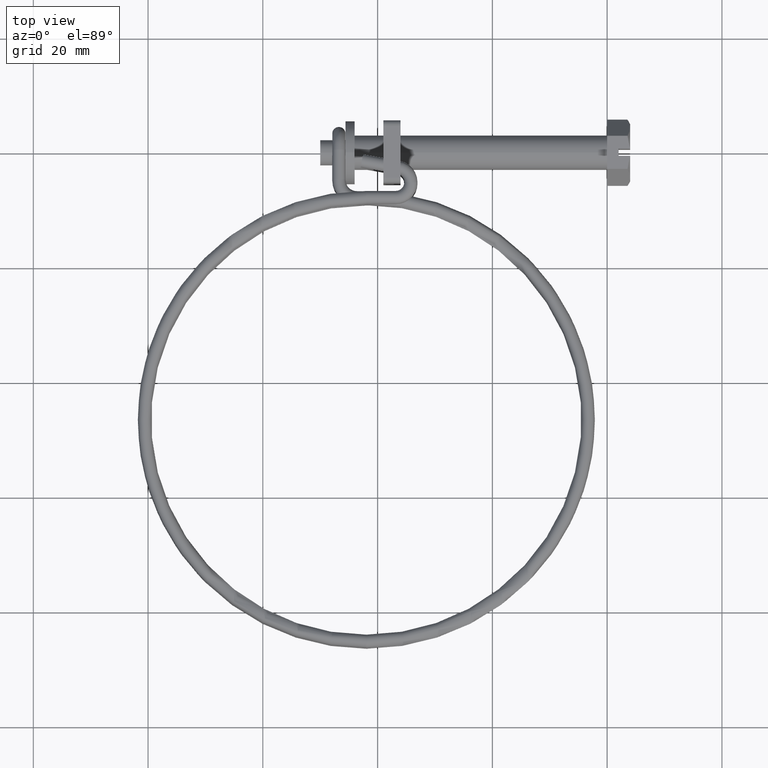
[diagram: clean part render]
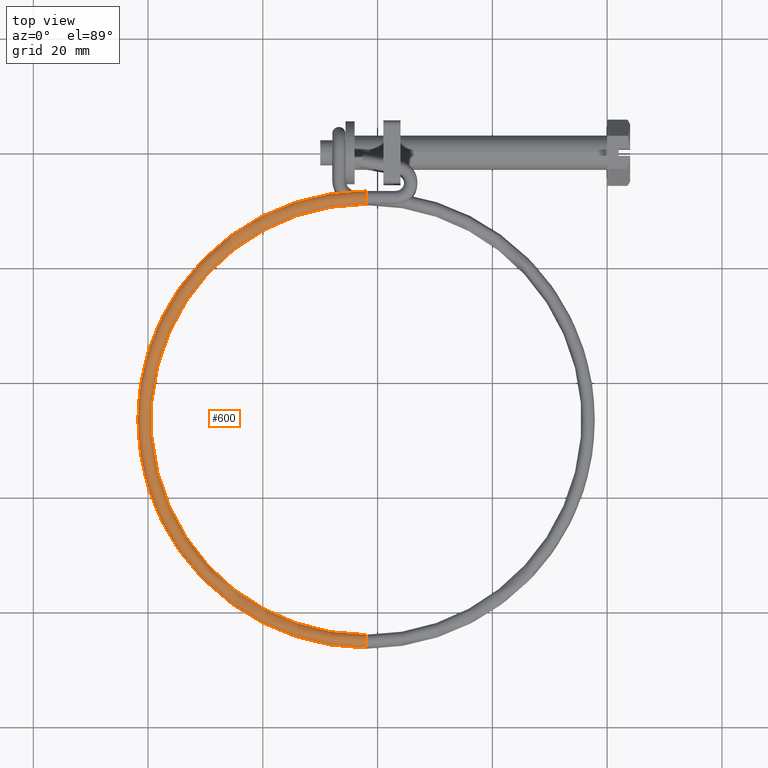
[diagram: same view with one face highlighted and labeled with its STEP entity id]
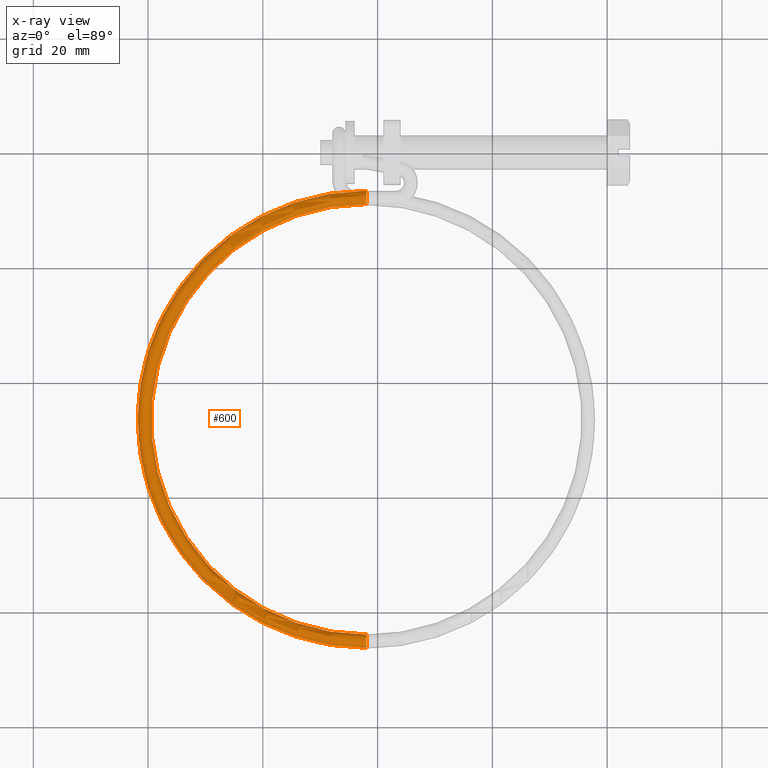
[diagram: x-ray of the same camera — body ghosted, the highlighted face saturated]
A machine part, top view. The second image highlights one B-rep face of the part: STEP entity #600.
The next image is the same camera in x-ray: the body ghosted, the highlighted face saturated — about 0% of this face is hidden behind the body in this view.
In plain terms, the highlighted toroidal blend (fillet) surface has major radius 38.6679 mm and minor (blend) radius 1.15 mm.
Its self-contained STEP definition (entity closure, byte-faithful):
#11 = CARTESIAN_POINT ( 'NONE',  ( 4.795899999999999600, -46.56164372549100200, 5.375000000000000900 ) ) ;
#79 = EDGE_CURVE ( 'NONE', #744, #2029, #134, .T. ) ;
#134 = CIRCLE ( 'NONE', #326, 1.149999999999995500 ) ;
#181 = EDGE_LOOP ( 'NONE', ( #945, #2686, #2412, #783, #421, #654 ) ) ;
#221 = DIRECTION ( 'NONE',  ( 0.0000000000000000000, 0.9995382086116259000, 0.03038699599272084300 ) ) ;
#225 = EDGE_CURVE ( 'NONE', #744, #1664, #1940, .T. ) ;
#301 = EDGE_CURVE ( 'NONE', #1664, #1074, #2448, .T. ) ;
#326 = AXIS2_PLACEMENT_3D ( 'NONE', #2263, #829, #2528 ) ;
#328 = CARTESIAN_POINT ( 'NONE',  ( 4.795900000000538700, -6.762174785587632200, 6.584945045391629400 ) ) ;
#345 = EDGE_CURVE ( 'NONE', #2029, #946, #1025, .T. ) ;
#421 = ORIENTED_EDGE ( 'NONE', *, *, #1518, .F. ) ;
#443 = DIRECTION ( 'NONE',  ( 1.000000000000000000, 8.541259029660799100E-016, -7.287247824286586400E-016 ) ) ;
#458 = AXIS2_PLACEMENT_3D ( 'NONE', #1872, #443, #2122 ) ;
#562 = VERTEX_POINT ( 'NONE', #747 ) ;
#591 = DIRECTION ( 'NONE',  ( 0.0000000000000000000, 0.9995382086116260100, 0.03038699599272085000 ) ) ;
#600 = ADVANCED_FACE ( 'NONE', ( #2842 ), #994, .T. ) ;
#638 = CARTESIAN_POINT ( 'NONE',  ( 4.795900000000003200, -85.21164372549098700, 4.200000000000001100 ) ) ;
#654 = ORIENTED_EDGE ( 'NONE', *, *, #301, .F. ) ;
#724 = CIRCLE ( 'NONE', #1020, 37.51785648313079200 ) ;
#744 = VERTEX_POINT ( 'NONE', #2120 ) ;
#747 = CARTESIAN_POINT ( 'NONE',  ( 4.795900000000540500, -9.061112665394370300, 6.515054954608372900 ) ) ;
#783 = ORIENTED_EDGE ( 'NONE', *, *, #2367, .T. ) ;
#795 = AXIS2_PLACEMENT_3D ( 'NONE', #638, #2313, #883 ) ;
#829 = DIRECTION ( 'NONE',  ( -1.000000000000000000, -1.489016563090529400E-014, -1.207367539279857700E-015 ) ) ;
#883 = DIRECTION ( 'NONE',  ( 1.508455196501577500E-014, -0.9945218953682732900, -0.1045284632676544400 ) ) ;
#903 = DIRECTION ( 'NONE',  ( 0.0000000000000000000, 0.9995382086116260100, 0.03038699599272083600 ) ) ;
#945 = ORIENTED_EDGE ( 'NONE', *, *, #225, .F. ) ;
#946 = VERTEX_POINT ( 'NONE', #1535 ) ;
#994 = TOROIDAL_SURFACE ( 'NONE', #1368, 38.66785648313077700, 1.149999999999999900 ) ;
#1020 = AXIS2_PLACEMENT_3D ( 'NONE', #3117, #1656, #221 ) ;
#1025 = CIRCLE ( 'NONE', #795, 1.149999999999995500 ) ;
#1072 = DIRECTION ( 'NONE',  ( 1.000000000000000000, 8.541259029660799100E-016, -7.287247824286586400E-016 ) ) ;
#1074 = VERTEX_POINT ( 'NONE', #1449 ) ;
#1135 = CIRCLE ( 'NONE', #2864, 1.150000000000000400 ) ;
#1368 = AXIS2_PLACEMENT_3D ( 'NONE', #1784, #2015, #591 ) ;
#1449 = CARTESIAN_POINT ( 'NONE',  ( 4.795900000000540500, -9.061643725490997200, 6.550000000000000700 ) ) ;
#1518 = EDGE_CURVE ( 'NONE', #1074, #562, #1135, .T. ) ;
#1535 = CARTESIAN_POINT ( 'NONE',  ( 4.795899999999985400, -84.06217478558761500, 4.234945045391629700 ) ) ;
#1656 = DIRECTION ( 'NONE',  ( -0.0000000000000000000, 0.03038699599272085000, -0.9995382086116261200 ) ) ;
#1664 = VERTEX_POINT ( 'NONE', #328 ) ;
#1784 = CARTESIAN_POINT ( 'NONE',  ( 4.795899999999999600, -46.56164372549100200, 5.375000000000000900 ) ) ;
#1872 = CARTESIAN_POINT ( 'NONE',  ( 4.795900000000539600, -7.911643725490996800, 6.550000000000001600 ) ) ;
#1916 = CARTESIAN_POINT ( 'NONE',  ( 4.795900000000019100, -86.36164372549099300, 4.200000000000001100 ) ) ;
#1940 = CIRCLE ( 'NONE', #2473, 39.81785648313078200 ) ;
#2015 = DIRECTION ( 'NONE',  ( -0.0000000000000000000, 0.03038699599272085000, -0.9995382086116261200 ) ) ;
#2029 = VERTEX_POINT ( 'NONE', #1916 ) ;
#2120 = CARTESIAN_POINT ( 'NONE',  ( 4.795900000000020000, -86.36111266539437300, 4.165054954608373300 ) ) ;
#2122 = DIRECTION ( 'NONE',  ( -7.542275982507854200E-016, 0.9990349513544672900, -0.04392227193779064300 ) ) ;
#2263 = CARTESIAN_POINT ( 'NONE',  ( 4.795900000000003200, -85.21164372549098700, 4.200000000000001100 ) ) ;
#2313 = DIRECTION ( 'NONE',  ( -1.000000000000000000, -1.489016563090529400E-014, -1.207367539279857700E-015 ) ) ;
#2335 = DIRECTION ( 'NONE',  ( -0.0000000000000000000, 0.03038699599272085000, -0.9995382086116261200 ) ) ;
#2367 = EDGE_CURVE ( 'NONE', #946, #562, #724, .T. ) ;
#2412 = ORIENTED_EDGE ( 'NONE', *, *, #345, .T. ) ;
#2448 = CIRCLE ( 'NONE', #458, 1.150000000000000400 ) ;
#2473 = AXIS2_PLACEMENT_3D ( 'NONE', #11, #2335, #903 ) ;
#2522 = CARTESIAN_POINT ( 'NONE',  ( 4.795900000000539600, -7.911643725490996800, 6.550000000000001600 ) ) ;
#2528 = DIRECTION ( 'NONE',  ( 1.508455196501577500E-014, -0.9945218953682732900, -0.1045284632676544400 ) ) ;
#2686 = ORIENTED_EDGE ( 'NONE', *, *, #79, .T. ) ;
#2766 = DIRECTION ( 'NONE',  ( -7.542275982507854200E-016, 0.9990349513544672900, -0.04392227193779064300 ) ) ;
#2842 = FACE_OUTER_BOUND ( 'NONE', #181, .T. ) ;
#2864 = AXIS2_PLACEMENT_3D ( 'NONE', #2522, #1072, #2766 ) ;
#3117 = CARTESIAN_POINT ( 'NONE',  ( 4.795899999999999600, -46.56164372549100200, 5.375000000000000900 ) ) ;